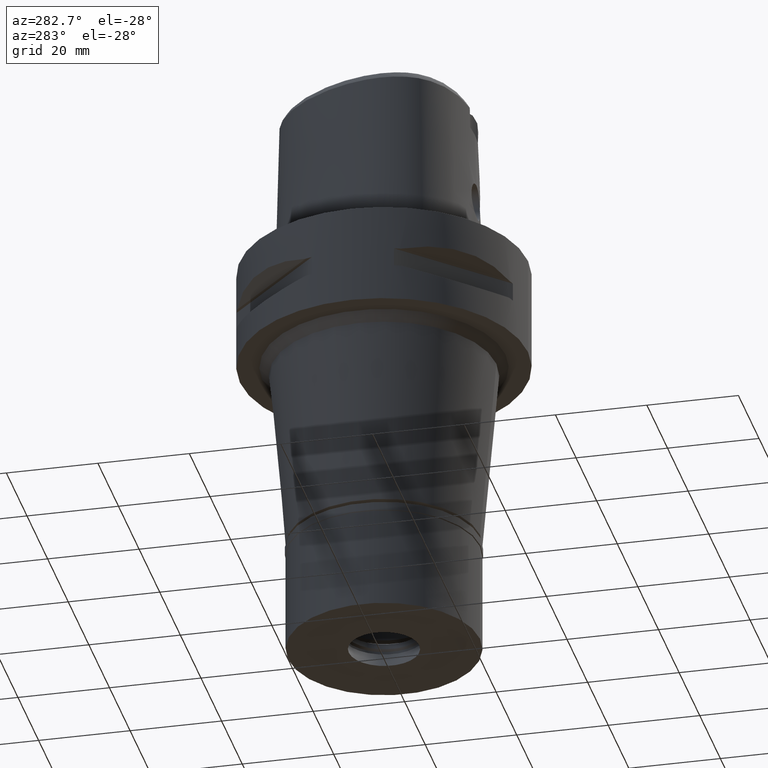
[diagram: clean part render]
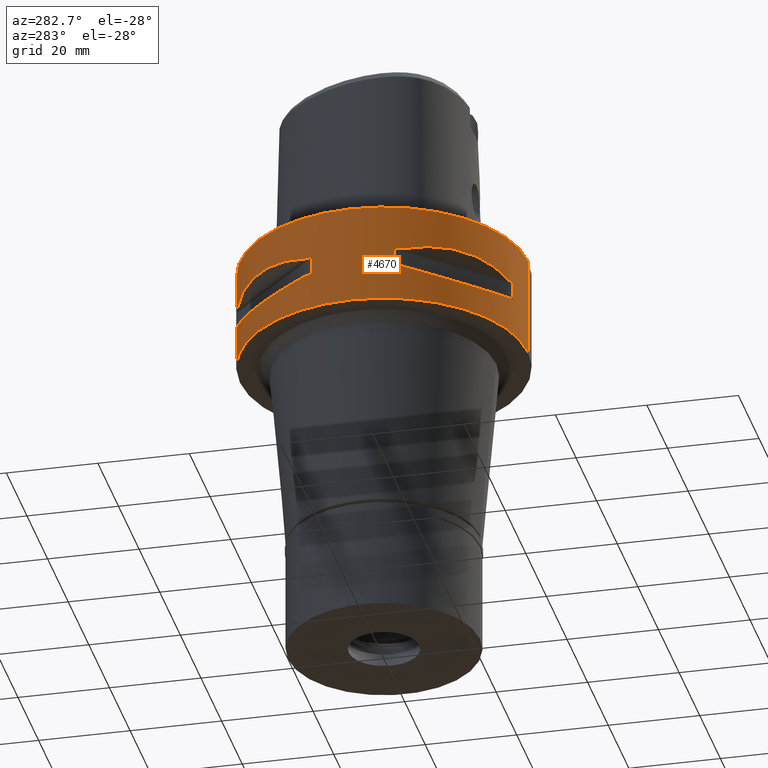
[diagram: same view with one face highlighted and labeled with its STEP entity id]
A machine part, auxiliary view. The second image highlights one B-rep face of the part: STEP entity #4670.
In plain terms, the highlighted cylindrical surface (partial cylindrical patch) has radius 31.5 mm, axis along (0, 0, -1).
Its self-contained STEP definition (entity closure, byte-faithful):
#61 = DIRECTION ( 'NONE',  ( 0.0000000000000000000, 0.0000000000000000000, -1.000000000000000000 ) ) ;
#79 = AXIS2_PLACEMENT_3D ( 'NONE', #563, #2770, #3538 ) ;
#108 = CARTESIAN_POINT ( 'NONE',  ( -8.981198972017999438, -30.19251670572000279, -9.950000000000001066 ) ) ;
#138 = DIRECTION ( 'NONE',  ( 0.0000000000000000000, 0.0000000000000000000, -1.000000000000000000 ) ) ;
#158 = DIRECTION ( 'NONE',  ( 0.0000000000000000000, 0.0000000000000000000, 1.000000000000000000 ) ) ;
#198 = CARTESIAN_POINT ( 'NONE',  ( -27.11872488589304453, -16.03138450078185429, -15.26880420107623237 ) ) ;
#221 = FACE_OUTER_BOUND ( 'NONE', #1717, .T. ) ;
#243 = DIRECTION ( 'NONE',  ( 0.0000000000000000000, 0.0000000000000000000, -1.000000000000000000 ) ) ;
#249 = CARTESIAN_POINT ( 'NONE',  ( -30.19251670572000279, -8.981198972017999438, -14.05000000000000071 ) ) ;
#263 = DIRECTION ( 'NONE',  ( 0.0000000000000000000, 0.0000000000000000000, -1.000000000000000000 ) ) ;
#282 = CARTESIAN_POINT ( 'NONE',  ( -12.70097436179016981, -28.92472615206970588, -9.353533115217881999 ) ) ;
#305 = ORIENTED_EDGE ( 'NONE', *, *, #3447, .T. ) ;
#320 = VERTEX_POINT ( 'NONE', #1582 ) ;
#342 = DIRECTION ( 'NONE',  ( 0.0000000000000000000, 0.0000000000000000000, -1.000000000000000000 ) ) ;
#351 = CARTESIAN_POINT ( 'NONE',  ( 0.0000000000000000000, 1.275163479612000028E-14, -9.950000000000001066 ) ) ;
#367 = DIRECTION ( 'NONE',  ( 0.0000000000000000000, -1.000000000000000000, 0.0000000000000000000 ) ) ;
#388 = CARTESIAN_POINT ( 'NONE',  ( -16.98999780422095540, -26.52527364208602734, -15.41788098766330783 ) ) ;
#393 = ORIENTED_EDGE ( 'NONE', *, *, #1814, .T. ) ;
#423 = CARTESIAN_POINT ( 'NONE',  ( -24.23018836745279714, 20.18579225685798306, -15.78559396978850415 ) ) ;
#450 = CARTESIAN_POINT ( 'NONE',  ( -23.08532645888017854, 21.46242677077873751, -15.83938991065184076 ) ) ;
#534 = ORIENTED_EDGE ( 'NONE', *, *, #4756, .F. ) ;
#563 = CARTESIAN_POINT ( 'NONE',  ( 0.0000000000000000000, 1.275163479612000028E-14, -22.00000000000000000 ) ) ;
#576 = CARTESIAN_POINT ( 'NONE',  ( -28.62019653468943048, -13.25636937903484203, -14.74888225541266884 ) ) ;
#618 = CARTESIAN_POINT ( 'NONE',  ( 0.0000000000000000000, 1.275163479612000028E-14, 4.125000000000000000 ) ) ;
#656 = CARTESIAN_POINT ( 'NONE',  ( -28.92474506843119286, -12.70092055735351266, -9.353547358214942875 ) ) ;
#661 = CARTESIAN_POINT ( 'NONE',  ( 0.0000000000000000000, 1.275163479612000028E-14, -14.05000000000000071 ) ) ;
#662 = CARTESIAN_POINT ( 'NONE',  ( -28.92472615203844910, 12.70097436187914575, -9.353533115194341718 ) ) ;
#666 = CARTESIAN_POINT ( 'NONE',  ( 0.0000000000000000000, 1.275163479612000028E-14, -14.05000000000000071 ) ) ;
#705 = CARTESIAN_POINT ( 'NONE',  ( -12.73197616784617381, -28.91382665370159799, -14.65467361752943809 ) ) ;
#714 = AXIS2_PLACEMENT_3D ( 'NONE', #3997, #2079, #3235 ) ;
#743 = CARTESIAN_POINT ( 'NONE',  ( -16.03138450077636534, 27.11872488589498786, -15.26880420107476333 ) ) ;
#796 = CARTESIAN_POINT ( 'NONE',  ( 0.0000000000000000000, -31.50000000000000000, -22.00000000000000000 ) ) ;
#808 = VECTOR ( 'NONE', #61, 1000.000000000000000 ) ;
#873 = B_SPLINE_CURVE_WITH_KNOTS ( 'NONE', 3,
 ( #4440, #4034, #576, #3653, #198, #4821, #4562, #4165, #3409, #3813, #3761, #3035, #1087, #2641, #3840, #2617, #3009, #3085, #4140, #388, #4907, #3383, #705, #3060 ),
 .UNSPECIFIED., .F., .F.,
 ( 4, 1, 1, 1, 1, 1, 2, 2, 2, 1, 1, 1, 1, 1, 2, 2, 4 ),
 ( 0.0000000000000000000, 0.1250000000000055511, 0.1875000000000083267, 0.2187500000000097977, 0.2343750000000106304, 0.2421875000000108247, 0.2460937500000108524, 0.2500000000000108802, 0.5000000000000087708, 0.6250000000000075495, 0.6875000000000071054, 0.7187500000000067724, 0.7343750000000066613, 0.7421875000000065503, 0.7460937500000062172, 0.7500000000000059952, 1.000000000000000000 ),
 .UNSPECIFIED. ) ;
#894 = ORIENTED_EDGE ( 'NONE', *, *, #4453, .F. ) ;
#941 = VERTEX_POINT ( 'NONE', #249 ) ;
#976 = FACE_BOUND ( 'NONE', #3875, .T. ) ;
#1068 = CARTESIAN_POINT ( 'NONE',  ( -8.981198972019999616, -30.19251670572000279, -14.05000000000000071 ) ) ;
#1087 = CARTESIAN_POINT ( 'NONE',  ( -21.46242677078364025, -23.08532645888299939, -15.83938991065501867 ) ) ;
#1088 = CARTESIAN_POINT ( 'NONE',  ( -29.71690375017999841, 10.44775724750000023, -9.949999999998999201 ) ) ;
#1097 = EDGE_CURVE ( 'NONE', #4832, #941, #1714, .T. ) ;
#1105 = CYLINDRICAL_SURFACE ( 'NONE', #1170, 31.50000000000000000 ) ;
#1108 = VERTEX_POINT ( 'NONE', #1577 ) ;
#1118 = CARTESIAN_POINT ( 'NONE',  ( -26.54368690921649687, 16.96123479564916892, -15.41365572341313239 ) ) ;
#1129 = VECTOR ( 'NONE', #2894, 1000.000000000000000 ) ;
#1136 = CARTESIAN_POINT ( 'NONE',  ( -29.71690375017999841, -10.44775724750000023, -9.949999999998999201 ) ) ;
#1146 = CARTESIAN_POINT ( 'NONE',  ( -26.29071741523646111, 17.35163608579689409, -15.46976201925398087 ) ) ;
#1156 = EDGE_CURVE ( 'NONE', #1227, #2766, #2123, .T. ) ;
#1170 = AXIS2_PLACEMENT_3D ( 'NONE', #618, #263, #2924 ) ;
#1192 = VERTEX_POINT ( 'NONE', #796 ) ;
#1196 = CARTESIAN_POINT ( 'NONE',  ( -16.70616724745637072, 26.70521063584585164, -15.37546661817639126 ) ) ;
#1197 = EDGE_CURVE ( 'NONE', #320, #1108, #4427, .T. ) ;
#1227 = VERTEX_POINT ( 'NONE', #1522 ) ;
#1267 = DIRECTION ( 'NONE',  ( 0.0000000000000000000, 0.0000000000000000000, -1.000000000000000000 ) ) ;
#1340 = VERTEX_POINT ( 'NONE', #1435 ) ;
#1349 = DIRECTION ( 'NONE',  ( 0.0000000000000000000, 0.0000000000000000000, -1.000000000000000000 ) ) ;
#1435 = CARTESIAN_POINT ( 'NONE',  ( -10.44775724750000023, 29.71690375017999841, -9.949999999998999201 ) ) ;
#1464 = CARTESIAN_POINT ( 'NONE',  ( -12.70092055726457225, 28.92474506846247451, -9.353547358238497367 ) ) ;
#1483 = ORIENTED_EDGE ( 'NONE', *, *, #2301, .T. ) ;
#1498 = CARTESIAN_POINT ( 'NONE',  ( -16.89910283486545950, 26.58330558444438907, -15.40446471307224030 ) ) ;
#1514 = CARTESIAN_POINT ( 'NONE',  ( -23.90617837150508507, -20.64154884324739214, -8.160627831297871282 ) ) ;
#1522 = CARTESIAN_POINT ( 'NONE',  ( 0.0000000000000000000, -31.50000000000000000, 0.0000000000000000000 ) ) ;
#1549 = CARTESIAN_POINT ( 'NONE',  ( -13.25636937902232404, 28.62019653469382163, -14.74888225540932751 ) ) ;
#1577 = CARTESIAN_POINT ( 'NONE',  ( -29.71690375017999841, 10.44775724750000023, -14.05000000000000071 ) ) ;
#1582 = CARTESIAN_POINT ( 'NONE',  ( -10.44775724750000023, 29.71690375017999841, -14.05000000000000071 ) ) ;
#1701 = CARTESIAN_POINT ( 'NONE',  ( -30.19251670572000279, 8.981198972017999438, -14.05000000000000071 ) ) ;
#1714 = CIRCLE ( 'NONE', #3396, 31.50000000000000711 ) ;
#1717 = EDGE_LOOP ( 'NONE', ( #3727, #1745, #2499, #2002 ) ) ;
#1734 = ORIENTED_EDGE ( 'NONE', *, *, #3897, .F. ) ;
#1741 = VECTOR ( 'NONE', #158, 1000.000000000000000 ) ;
#1745 = ORIENTED_EDGE ( 'NONE', *, *, #3266, .F. ) ;
#1779 = AXIS2_PLACEMENT_3D ( 'NONE', #661, #243, #2180 ) ;
#1809 = EDGE_CURVE ( 'NONE', #4610, #1192, #3218, .T. ) ;
#1814 = EDGE_CURVE ( 'NONE', #2114, #1340, #2910, .T. ) ;
#1826 = DIRECTION ( 'NONE',  ( 0.0000000000000000000, 0.0000000000000000000, -1.000000000000000000 ) ) ;
#1873 = CARTESIAN_POINT ( 'NONE',  ( -26.01217882834653139, 17.76952662671834915, -15.52665221626015501 ) ) ;
#1916 = VERTEX_POINT ( 'NONE', #2412 ) ;
#1944 = B_SPLINE_CURVE_WITH_KNOTS ( 'NONE', 3,
 ( #1136, #656, #4981, #2959, #1514, #3379, #3353, #4885, #282, #2614 ),
 .UNSPECIFIED., .F., .F.,
 ( 4, 2, 2, 2, 4 ),
 ( 0.0000000000000000000, 0.2499999999999999445, 0.4999999999999998890, 0.7499999999999997780, 1.000000000000000000 ),
 .UNSPECIFIED. ) ;
#1951 = CARTESIAN_POINT ( 'NONE',  ( 0.0000000000000000000, -31.50000000000000000, 0.0000000000000000000 ) ) ;
#1952 = EDGE_CURVE ( 'NONE', #2818, #2130, #3706, .T. ) ;
#1959 = CARTESIAN_POINT ( 'NONE',  ( -16.80193241490443157, 26.64486562695815053, -15.38992683735661515 ) ) ;
#1970 = CARTESIAN_POINT ( 'NONE',  ( -29.71690375017999841, -10.44775724750000023, -14.05000000000000071 ) ) ;
#1985 = CARTESIAN_POINT ( 'NONE',  ( -15.11986997308662595, 27.64634172018752523, -15.11207862403231239 ) ) ;
#1994 = CARTESIAN_POINT ( 'NONE',  ( -8.981198972017999438, 30.19251670572000279, -9.950000000000001066 ) ) ;
#2002 = ORIENTED_EDGE ( 'NONE', *, *, #3200, .T. ) ;
#2041 = CARTESIAN_POINT ( 'NONE',  ( -10.44775724750000023, -29.71690375017999841, -14.05000000000000071 ) ) ;
#2047 = ORIENTED_EDGE ( 'NONE', *, *, #4877, .T. ) ;
#2050 = DIRECTION ( 'NONE',  ( -0.2851174276831918153, -0.9584925938322735872, 0.0000000000000000000 ) ) ;
#2067 = CARTESIAN_POINT ( 'NONE',  ( -8.981198972017999438, 30.19251670572000279, -14.05000000000000071 ) ) ;
#2072 = LINE ( 'NONE', #2458, #1741 ) ;
#2079 = DIRECTION ( 'NONE',  ( 0.0000000000000000000, 0.0000000000000000000, 1.000000000000000000 ) ) ;
#2105 = VERTEX_POINT ( 'NONE', #2067 ) ;
#2114 = VERTEX_POINT ( 'NONE', #2805 ) ;
#2123 = CIRCLE ( 'NONE', #2769, 31.50000000000000000 ) ;
#2130 = VERTEX_POINT ( 'NONE', #2041 ) ;
#2180 = DIRECTION ( 'NONE',  ( -0.3316748332540863653, 0.9433937698468619626, 0.0000000000000000000 ) ) ;
#2205 = CARTESIAN_POINT ( 'NONE',  ( -18.81455742157509903, 25.37277178172508840, -8.309746333145048069 ) ) ;
#2301 = EDGE_CURVE ( 'NONE', #1340, #1916, #4484, .T. ) ;
#2370 = CARTESIAN_POINT ( 'NONE',  ( -26.42800887047508240, 17.14106442934706820, -15.43984550238465836 ) ) ;
#2383 = EDGE_CURVE ( 'NONE', #3861, #4256, #3549, .T. ) ;
#2412 = CARTESIAN_POINT ( 'NONE',  ( -29.71690375017999841, 10.44775724750000023, -9.949999999998999201 ) ) ;
#2416 = CARTESIAN_POINT ( 'NONE',  ( -30.19251670572000279, 8.981198972017999438, -9.950000000000001066 ) ) ;
#2433 = DIRECTION ( 'NONE',  ( 0.0000000000000000000, 0.0000000000000000000, -1.000000000000000000 ) ) ;
#2435 = VERTEX_POINT ( 'NONE', #2416 ) ;
#2458 = CARTESIAN_POINT ( 'NONE',  ( -8.981198972017999438, -30.19251670572000279, -14.05000000000000071 ) ) ;
#2499 = ORIENTED_EDGE ( 'NONE', *, *, #1156, .T. ) ;
#2526 = LINE ( 'NONE', #4819, #4407 ) ;
#2613 = VERTEX_POINT ( 'NONE', #3430 ) ;
#2614 = CARTESIAN_POINT ( 'NONE',  ( -10.44775724750000023, -29.71690375017999841, -9.949999999998999201 ) ) ;
#2617 = CARTESIAN_POINT ( 'NONE',  ( -17.76952662672209371, -26.01217882834868433, -15.52665221626257264 ) ) ;
#2618 = CARTESIAN_POINT ( 'NONE',  ( -10.44775724750000023, 29.71690375017999841, -9.949999999998999201 ) ) ;
#2641 = CARTESIAN_POINT ( 'NONE',  ( -20.18579225686653444, -24.23018836745773541, -15.78559396979401974 ) ) ;
#2701 = CARTESIAN_POINT ( 'NONE',  ( -16.48208282228564769, 26.84474411198887012, -15.34094883777873619 ) ) ;
#2717 = LINE ( 'NONE', #3514, #808 ) ;
#2749 = CARTESIAN_POINT ( 'NONE',  ( -28.91382665368626093, 12.73197616788979047, -14.65467361754097197 ) ) ;
#2766 = VERTEX_POINT ( 'NONE', #4540 ) ;
#2769 = AXIS2_PLACEMENT_3D ( 'NONE', #4699, #342, #367 ) ;
#2770 = DIRECTION ( 'NONE',  ( 0.0000000000000000000, 0.0000000000000000000, 1.000000000000000000 ) ) ;
#2797 = DIRECTION ( 'NONE',  ( 0.0000000000000000000, 0.0000000000000000000, 1.000000000000000000 ) ) ;
#2805 = CARTESIAN_POINT ( 'NONE',  ( -8.981198972019999616, 30.19251670572000279, -9.950000000000001066 ) ) ;
#2818 = VERTEX_POINT ( 'NONE', #1068 ) ;
#2894 = DIRECTION ( 'NONE',  ( 0.0000000000000000000, 0.0000000000000000000, 1.000000000000000000 ) ) ;
#2910 = CIRCLE ( 'NONE', #714, 31.50000000000001776 ) ;
#2924 = DIRECTION ( 'NONE',  ( 0.0000000000000000000, -1.000000000000000000, 0.0000000000000000000 ) ) ;
#2935 = CARTESIAN_POINT ( 'NONE',  ( -10.44775724750000023, -29.71690375017999841, -9.949999999998999201 ) ) ;
#2939 = FACE_BOUND ( 'NONE', #3163, .T. ) ;
#2959 = CARTESIAN_POINT ( 'NONE',  ( -25.37277178164059777, -18.81455742168903456, -8.309746333109711003 ) ) ;
#2989 = CARTESIAN_POINT ( 'NONE',  ( -23.90617837143843971, 20.64154884331406237, -8.160613588453221823 ) ) ;
#3009 = CARTESIAN_POINT ( 'NONE',  ( -17.35163608579889072, -26.29071741523761929, -15.46976201925527761 ) ) ;
#3010 = CARTESIAN_POINT ( 'NONE',  ( -20.64154884331406237, 23.90617837143844682, -8.160627831321418668 ) ) ;
#3023 = CIRCLE ( 'NONE', #4076, 31.50000000000001776 ) ;
#3024 = EDGE_CURVE ( 'NONE', #2613, #3861, #1944, .T. ) ;
#3035 = CARTESIAN_POINT ( 'NONE',  ( -23.89673728055121416, -20.65093790435243193, -15.83935804901394739 ) ) ;
#3036 = CARTESIAN_POINT ( 'NONE',  ( 0.0000000000000000000, 1.275163479612000028E-14, -9.950000000000001066 ) ) ;
#3060 = CARTESIAN_POINT ( 'NONE',  ( -10.44775724750000023, -29.71690375017999841, -14.05000000000000071 ) ) ;
#3067 = CARTESIAN_POINT ( 'NONE',  ( -26.48642424310458665, 17.05047092244234008, -15.42670883407647509 ) ) ;
#3085 = CARTESIAN_POINT ( 'NONE',  ( -17.14106442934810204, -26.42800887047570058, -15.43984550238532982 ) ) ;
#3102 = CARTESIAN_POINT ( 'NONE',  ( -30.19251670572000279, -8.981198972019999616, -9.950000000000001066 ) ) ;
#3103 = DIRECTION ( 'NONE',  ( 0.0000000000000000000, 0.0000000000000000000, -1.000000000000000000 ) ) ;
#3112 = ORIENTED_EDGE ( 'NONE', *, *, #4417, .T. ) ;
#3149 = AXIS2_PLACEMENT_3D ( 'NONE', #3747, #4852, #4497 ) ;
#3163 = EDGE_LOOP ( 'NONE', ( #3941, #894, #3284, #4265, #3301, #534, #305, #4599 ) ) ;
#3174 = CIRCLE ( 'NONE', #4394, 31.50000000000000711 ) ;
#3175 = CARTESIAN_POINT ( 'NONE',  ( 0.0000000000000000000, 1.275163479612000028E-14, -14.05000000000000071 ) ) ;
#3183 = VECTOR ( 'NONE', #2433, 1000.000000000000000 ) ;
#3200 = EDGE_CURVE ( 'NONE', #2766, #4610, #2717, .T. ) ;
#3218 = CIRCLE ( 'NONE', #79, 31.50000000000000000 ) ;
#3235 = DIRECTION ( 'NONE',  ( -0.2851174276831918153, 0.9584925938322735872, 0.0000000000000000000 ) ) ;
#3266 = EDGE_CURVE ( 'NONE', #1227, #1192, #3517, .T. ) ;
#3284 = ORIENTED_EDGE ( 'NONE', *, *, #1952, .T. ) ;
#3301 = ORIENTED_EDGE ( 'NONE', *, *, #1097, .T. ) ;
#3329 = LINE ( 'NONE', #1701, #1129 ) ;
#3353 = CARTESIAN_POINT ( 'NONE',  ( -18.81462633026353970, -25.37272068403001413, -8.309724968614126794 ) ) ;
#3377 = VECTOR ( 'NONE', #138, 1000.000000000000000 ) ;
#3379 = CARTESIAN_POINT ( 'NONE',  ( -20.64154884324739214, -23.90617837150508507, -8.160613588476767433 ) ) ;
#3383 = CARTESIAN_POINT ( 'NONE',  ( -14.89252659053665440, -27.86285265927818600, -15.10765629750852135 ) ) ;
#3396 = AXIS2_PLACEMENT_3D ( 'NONE', #666, #1826, #3904 ) ;
#3409 = CARTESIAN_POINT ( 'NONE',  ( -26.60451452154760332, -16.86571563436626064, -15.39949295786003347 ) ) ;
#3430 = CARTESIAN_POINT ( 'NONE',  ( -29.71690375017999841, -10.44775724750000023, -9.949999999998999201 ) ) ;
#3443 = CARTESIAN_POINT ( 'NONE',  ( -10.44775724750000023, 29.71690375017999841, -14.05000000000000071 ) ) ;
#3447 = EDGE_CURVE ( 'NONE', #4781, #2613, #3965, .T. ) ;
#3497 = CARTESIAN_POINT ( 'NONE',  ( -18.86897208073744991, 25.32725744467937545, -15.69588095933747240 ) ) ;
#3514 = CARTESIAN_POINT ( 'NONE',  ( 0.0000000000000000000, 31.50000000000000000, 0.0000000000000000000 ) ) ;
#3517 = LINE ( 'NONE', #1951, #3377 ) ;
#3538 = DIRECTION ( 'NONE',  ( 0.0000000000000000000, 1.000000000000000000, 0.0000000000000000000 ) ) ;
#3549 = CIRCLE ( 'NONE', #4689, 31.50000000000000711 ) ;
#3572 = ORIENTED_EDGE ( 'NONE', *, *, #3609, .T. ) ;
#3609 = EDGE_CURVE ( 'NONE', #320, #2105, #4857, .T. ) ;
#3619 = ORIENTED_EDGE ( 'NONE', *, *, #1197, .F. ) ;
#3623 = CARTESIAN_POINT ( 'NONE',  ( 0.0000000000000000000, 31.50000000000000000, -22.00000000000000000 ) ) ;
#3653 = CARTESIAN_POINT ( 'NONE',  ( -27.64634172018421410, -15.11986997309601577, -15.11207862403482238 ) ) ;
#3706 = CIRCLE ( 'NONE', #4444, 31.50000000000001776 ) ;
#3727 = ORIENTED_EDGE ( 'NONE', *, *, #1809, .T. ) ;
#3747 = CARTESIAN_POINT ( 'NONE',  ( 0.0000000000000000000, 1.275163479612000028E-14, -9.950000000000001066 ) ) ;
#3761 = CARTESIAN_POINT ( 'NONE',  ( -25.32725744469575702, -18.86897208070564247, -15.69588095933118943 ) ) ;
#3782 = EDGE_CURVE ( 'NONE', #4832, #2130, #873, .T. ) ;
#3788 = CARTESIAN_POINT ( 'NONE',  ( -14.84422749192772883, 27.88214534473898354, -8.906206096515608905 ) ) ;
#3813 = CARTESIAN_POINT ( 'NONE',  ( -26.58330558444411906, -16.89910283486596754, -15.40446471307235754 ) ) ;
#3840 = CARTESIAN_POINT ( 'NONE',  ( -18.59229662065495958, -25.43927894891979946, -15.62866126334684580 ) ) ;
#3861 = VERTEX_POINT ( 'NONE', #2935 ) ;
#3875 = EDGE_LOOP ( 'NONE', ( #2047, #1734, #3112, #3619, #3572, #4523, #393, #1483 ) ) ;
#3897 = EDGE_CURVE ( 'NONE', #4237, #2435, #3329, .T. ) ;
#3904 = DIRECTION ( 'NONE',  ( -0.9433937698468619626, -0.3316748332540863653, 0.0000000000000000000 ) ) ;
#3915 = LINE ( 'NONE', #1994, #3183 ) ;
#3941 = ORIENTED_EDGE ( 'NONE', *, *, #2383, .T. ) ;
#3965 = CIRCLE ( 'NONE', #3149, 31.50000000000001776 ) ;
#3997 = CARTESIAN_POINT ( 'NONE',  ( 0.0000000000000000000, 1.275163479612000028E-14, -9.950000000000001066 ) ) ;
#4034 = CARTESIAN_POINT ( 'NONE',  ( -29.31542262584746794, -11.58970337494326941, -14.35229357166913999 ) ) ;
#4076 = AXIS2_PLACEMENT_3D ( 'NONE', #3175, #3103, #4732 ) ;
#4140 = CARTESIAN_POINT ( 'NONE',  ( -17.05047092244293694, -26.48642424310493837, -15.42670883407686588 ) ) ;
#4165 = CARTESIAN_POINT ( 'NONE',  ( -26.64486562695783789, -16.80193241490531975, -15.38992683735687272 ) ) ;
#4198 = CARTESIAN_POINT ( 'NONE',  ( -27.86285265926284893, 14.89252659058025685, -15.10765629752004813 ) ) ;
#4237 = VERTEX_POINT ( 'NONE', #4291 ) ;
#4256 = VERTEX_POINT ( 'NONE', #108 ) ;
#4265 = ORIENTED_EDGE ( 'NONE', *, *, #3782, .F. ) ;
#4280 = CARTESIAN_POINT ( 'NONE',  ( -29.71690375017999841, 10.44775724750000023, -14.05000000000000071 ) ) ;
#4284 = EDGE_CURVE ( 'NONE', #2114, #2105, #3915, .T. ) ;
#4291 = CARTESIAN_POINT ( 'NONE',  ( -30.19251670572000279, 8.981198972019999616, -14.05000000000000071 ) ) ;
#4394 = AXIS2_PLACEMENT_3D ( 'NONE', #351, #4976, #4711 ) ;
#4407 = VECTOR ( 'NONE', #1349, 1000.000000000000000 ) ;
#4417 = EDGE_CURVE ( 'NONE', #4237, #1108, #3023, .T. ) ;
#4427 = B_SPLINE_CURVE_WITH_KNOTS ( 'NONE', 3,
 ( #3443, #4673, #1549, #1985, #743, #2701, #1196, #1959, #4991, #1498, #3497, #4594, #450, #423, #4645, #1873, #1146, #2370, #3067, #4965, #1118, #4198, #2749, #4280 ),
 .UNSPECIFIED., .F., .F.,
 ( 4, 1, 1, 1, 1, 1, 2, 2, 2, 1, 1, 1, 1, 1, 2, 2, 4 ),
 ( 0.0000000000000000000, 0.1249999999999950040, 0.1874999999999924505, 0.2187499999999911737, 0.2343749999999902855, 0.2421874999999899802, 0.2460937499999900080, 0.2499999999999900080, 0.4999999999999917843, 0.6249999999999925615, 0.6874999999999925615, 0.7187499999999924505, 0.7343749999999926725, 0.7421874999999927836, 0.7460937499999928946, 0.7499999999999931166, 1.000000000000000000 ),
 .UNSPECIFIED. ) ;
#4440 = CARTESIAN_POINT ( 'NONE',  ( -29.71690375017999841, -10.44775724750000023, -14.05000000000000071 ) ) ;
#4444 = AXIS2_PLACEMENT_3D ( 'NONE', #4735, #1267, #2050 ) ;
#4453 = EDGE_CURVE ( 'NONE', #2818, #4256, #2072, .T. ) ;
#4484 = B_SPLINE_CURVE_WITH_KNOTS ( 'NONE', 3,
 ( #2618, #1464, #3788, #2205, #3010, #2989, #4538, #4616, #662, #1088 ),
 .UNSPECIFIED., .F., .F.,
 ( 4, 2, 2, 2, 4 ),
 ( 0.0000000000000000000, 0.2500000000000000000, 0.5000000000000000000, 0.7500000000000000000, 1.000000000000000000 ),
 .UNSPECIFIED. ) ;
#4497 = DIRECTION ( 'NONE',  ( -0.9584925938322735872, -0.2851174276831918153, 0.0000000000000000000 ) ) ;
#4523 = ORIENTED_EDGE ( 'NONE', *, *, #4284, .F. ) ;
#4538 = CARTESIAN_POINT ( 'NONE',  ( -25.37272068394556257, 18.81462633037747167, -8.309724968578809268 ) ) ;
#4540 = CARTESIAN_POINT ( 'NONE',  ( 0.0000000000000000000, 31.50000000000000000, 0.0000000000000000000 ) ) ;
#4562 = CARTESIAN_POINT ( 'NONE',  ( -26.70521063584532229, -16.70616724745790549, -15.37546661817682292 ) ) ;
#4594 = CARTESIAN_POINT ( 'NONE',  ( -20.65093790435807364, 23.89673728056094859, -15.83935804902020550 ) ) ;
#4599 = ORIENTED_EDGE ( 'NONE', *, *, #3024, .T. ) ;
#4610 = VERTEX_POINT ( 'NONE', #3623 ) ;
#4616 = CARTESIAN_POINT ( 'NONE',  ( -27.88210502980663819, 14.84430321584963330, -8.906184731949368327 ) ) ;
#4645 = CARTESIAN_POINT ( 'NONE',  ( -25.43927894891607622, 18.59229662064853983, -15.62866126334269623 ) ) ;
#4670 = ADVANCED_FACE ( 'NONE', ( #221, #976, #2939 ), #1105, .T. ) ;
#4673 = CARTESIAN_POINT ( 'NONE',  ( -11.58970337493613378, 29.31542262584994418, -14.35229357166721265 ) ) ;
#4689 = AXIS2_PLACEMENT_3D ( 'NONE', #3036, #2797, #4719 ) ;
#4699 = CARTESIAN_POINT ( 'NONE',  ( 0.0000000000000000000, 1.275163479612000028E-14, 0.0000000000000000000 ) ) ;
#4711 = DIRECTION ( 'NONE',  ( -0.9433937698468619626, 0.3316748332540863653, 0.0000000000000000000 ) ) ;
#4719 = DIRECTION ( 'NONE',  ( -0.3316748332540863653, -0.9433937698468619626, 0.0000000000000000000 ) ) ;
#4732 = DIRECTION ( 'NONE',  ( -0.9584925938322735872, 0.2851174276831918153, 0.0000000000000000000 ) ) ;
#4735 = CARTESIAN_POINT ( 'NONE',  ( 0.0000000000000000000, 1.275163479612000028E-14, -14.05000000000000071 ) ) ;
#4756 = EDGE_CURVE ( 'NONE', #4781, #941, #2526, .T. ) ;
#4781 = VERTEX_POINT ( 'NONE', #3102 ) ;
#4819 = CARTESIAN_POINT ( 'NONE',  ( -30.19251670572000279, -8.981198972017999438, -9.950000000000001066 ) ) ;
#4821 = CARTESIAN_POINT ( 'NONE',  ( -26.84474411198783628, -16.48208282228858224, -15.34094883777952667 ) ) ;
#4832 = VERTEX_POINT ( 'NONE', #1970 ) ;
#4852 = DIRECTION ( 'NONE',  ( 0.0000000000000000000, 0.0000000000000000000, 1.000000000000000000 ) ) ;
#4857 = CIRCLE ( 'NONE', #1779, 31.50000000000000711 ) ;
#4877 = EDGE_CURVE ( 'NONE', #1916, #2435, #3174, .T. ) ;
#4885 = CARTESIAN_POINT ( 'NONE',  ( -14.84430321572443034, -27.88210502987327288, -8.906184731984685854 ) ) ;
#4907 = CARTESIAN_POINT ( 'NONE',  ( -16.96123479564984748, -26.54368690921626950, -15.41365572341332424 ) ) ;
#4965 = CARTESIAN_POINT ( 'NONE',  ( -26.52527364208584615, 16.98999780422065342, -15.41788098766309467 ) ) ;
#4976 = DIRECTION ( 'NONE',  ( 0.0000000000000000000, 0.0000000000000000000, 1.000000000000000000 ) ) ;
#4981 = CARTESIAN_POINT ( 'NONE',  ( -27.88214534467230976, -14.84422749205291581, -8.906206096480271839 ) ) ;
#4991 = CARTESIAN_POINT ( 'NONE',  ( -16.86571563436579169, 26.60451452154777030, -15.39949295785988426 ) ) ;